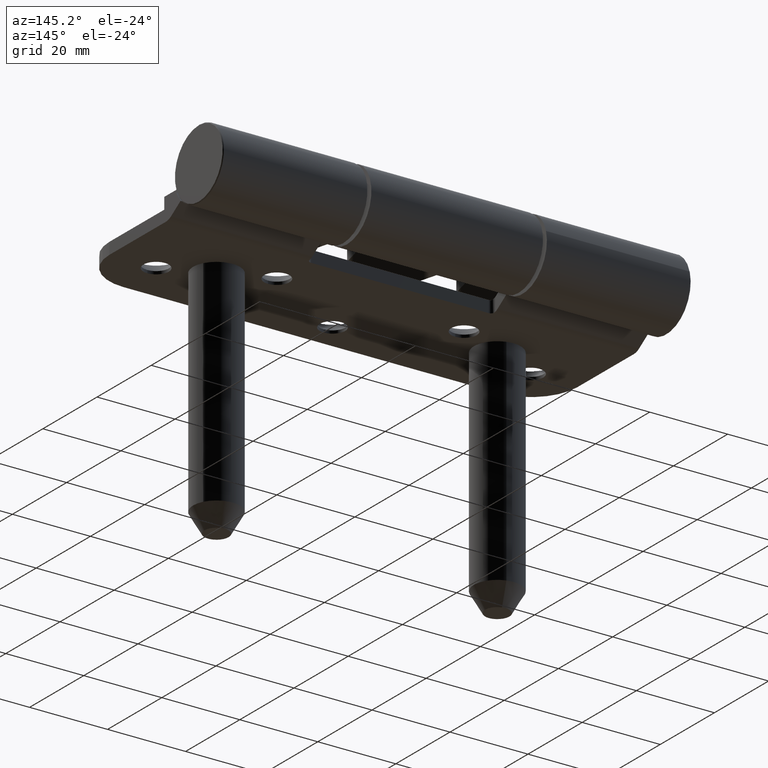
[diagram: clean part render]
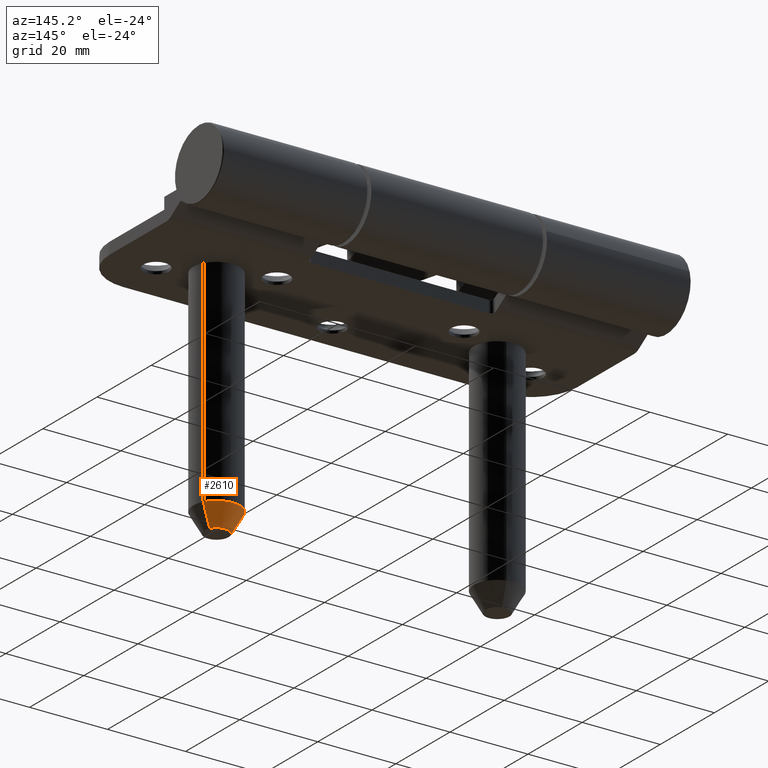
[diagram: same view with one face highlighted and labeled with its STEP entity id]
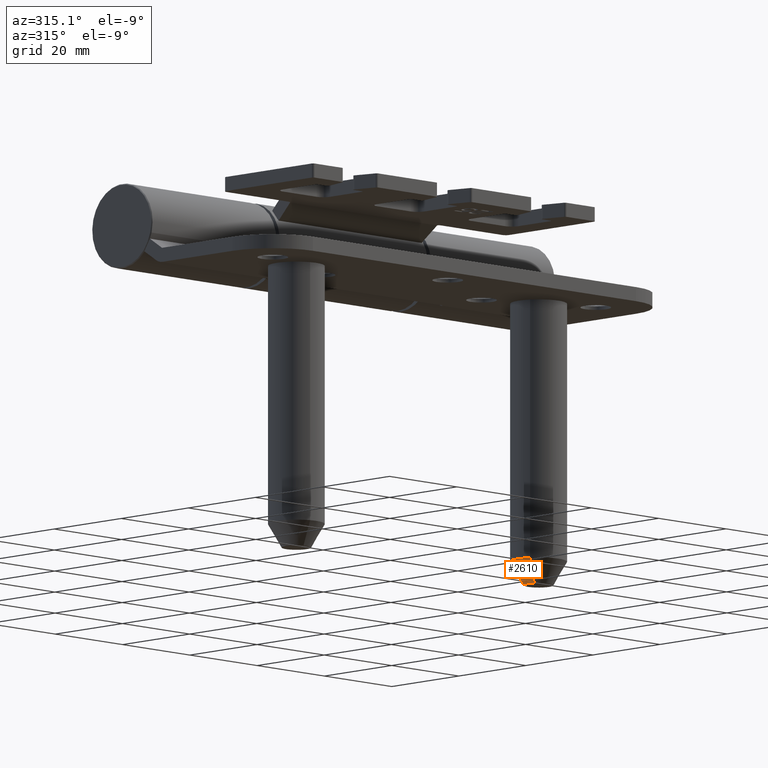
[diagram: same view with one face highlighted and labeled with its STEP entity id]
A machine part, auxiliary view. The second image highlights one B-rep face of the part: STEP entity #2610.
A second angle (auxiliary view) of the same face is appended — the face is thin or edge-on in the first view.
In plain terms, the highlighted conical surface has half-angle 30 deg.
Its self-contained STEP definition (entity closure, byte-faithful):
#165 = EDGE_CURVE ( 'NONE', #15438, #9844, #16519, .T. ) ;
#509 = DIRECTION ( 'NONE',  ( 3.330669073875437600E-016, -3.021411127496501400E-017, 1.000000000000000000 ) ) ;
#1827 = EDGE_LOOP ( 'NONE', ( #2466, #15936, #2452, #9492 ) ) ;
#1922 = CIRCLE ( 'NONE', #5563, 3.113248654051892700 ) ;
#2452 = ORIENTED_EDGE ( 'NONE', *, *, #165, .T. ) ;
#2466 = ORIENTED_EDGE ( 'NONE', *, *, #9833, .F. ) ;
#2593 = DIRECTION ( 'NONE',  ( -1.203321677975701000E-016, 0.8660254037844362700, -0.5000000000000041100 ) ) ;
#2610 = ADVANCED_FACE ( 'NONE', ( #17032 ), #4344, .T. ) ;
#3322 = CARTESIAN_POINT ( 'NONE',  ( 0.0000000000000000000, 0.0000000000000000000, 0.0000000000000000000 ) ) ;
#3652 = LINE ( 'NONE', #14092, #4929 ) ;
#4276 = DIRECTION ( 'NONE',  ( 1.515023996326082300E-016, 0.8660254037844362700, 0.5000000000000041100 ) ) ;
#4304 = CARTESIAN_POINT ( 'NONE',  ( 0.0000000000000000000, 0.0000000000000000000, 0.0000000000000000000 ) ) ;
#4344 = CONICAL_SURFACE ( 'NONE', #17245, 3.113248654051892700, 0.5235987755983001500 ) ;
#4929 = VECTOR ( 'NONE', #4276, 1000.000000000000100 ) ;
#5563 = AXIS2_PLACEMENT_3D ( 'NONE', #4304, #15431, #8522 ) ;
#5693 = CARTESIAN_POINT ( 'NONE',  ( 1.474269857187287900E-015, 9.406404126015863600E-017, 3.113248654051862900 ) ) ;
#5876 = CARTESIAN_POINT ( 'NONE',  ( 1.911619613241103400E-015, 5.000000000000004400, 6.000000000000056800 ) ) ;
#7879 = EDGE_CURVE ( 'NONE', #11207, #15438, #13102, .T. ) ;
#8207 = DIRECTION ( 'NONE',  ( -3.330669073875440000E-016, 0.0000000000000000000, -1.000000000000000000 ) ) ;
#8522 = DIRECTION ( 'NONE',  ( -3.330669073875437600E-016, 3.021411127496501400E-017, -1.000000000000000000 ) ) ;
#9275 = VERTEX_POINT ( 'NONE', #5693 ) ;
#9492 = ORIENTED_EDGE ( 'NONE', *, *, #11681, .F. ) ;
#9833 = EDGE_CURVE ( 'NONE', #11207, #9275, #1922, .T. ) ;
#9844 = VERTEX_POINT ( 'NONE', #5876 ) ;
#11207 = VERTEX_POINT ( 'NONE', #16773 ) ;
#11681 = EDGE_CURVE ( 'NONE', #9275, #9844, #3652, .T. ) ;
#12185 = CARTESIAN_POINT ( 'NONE',  ( -1.350395195921034800E-015, 5.000000000000004400, -6.000000000000056800 ) ) ;
#12255 = VECTOR ( 'NONE', #2593, 1000.000000000000100 ) ;
#13102 = LINE ( 'NONE', #14834, #12255 ) ;
#13865 = CARTESIAN_POINT ( 'NONE',  ( -4.510281037539698400E-014, 5.000000000000004400, -1.387778780781445700E-014 ) ) ;
#14092 = CARTESIAN_POINT ( 'NONE',  ( 1.036920101133497000E-015, -9.406404126015894400E-017, 3.113248654051892700 ) ) ;
#14324 = DIRECTION ( 'NONE',  ( -1.735636621683497000E-017, 1.000000000000000000, -3.021411127496519900E-017 ) ) ;
#14834 = CARTESIAN_POINT ( 'NONE',  ( -6.556571012200509100E-016, 9.406404126015894400E-017, -3.113248654051892700 ) ) ;
#15431 = DIRECTION ( 'NONE',  ( 1.735636621683497000E-017, -1.000000000000000000, 3.021411127496519900E-017 ) ) ;
#15438 = VERTEX_POINT ( 'NONE', #12185 ) ;
#15936 = ORIENTED_EDGE ( 'NONE', *, *, #7879, .T. ) ;
#16080 = AXIS2_PLACEMENT_3D ( 'NONE', #13865, #16432, #8207 ) ;
#16432 = DIRECTION ( 'NONE',  ( 1.735636621683497000E-017, -1.000000000000000000, 3.021411127496519900E-017 ) ) ;
#16519 = CIRCLE ( 'NONE', #16080, 6.000000000000057700 ) ;
#16773 = CARTESIAN_POINT ( 'NONE',  ( -1.003026148570534500E-015, -9.406404126015945000E-017, -3.113248654051862900 ) ) ;
#17032 = FACE_OUTER_BOUND ( 'NONE', #1827, .T. ) ;
#17245 = AXIS2_PLACEMENT_3D ( 'NONE', #3322, #14324, #509 ) ;